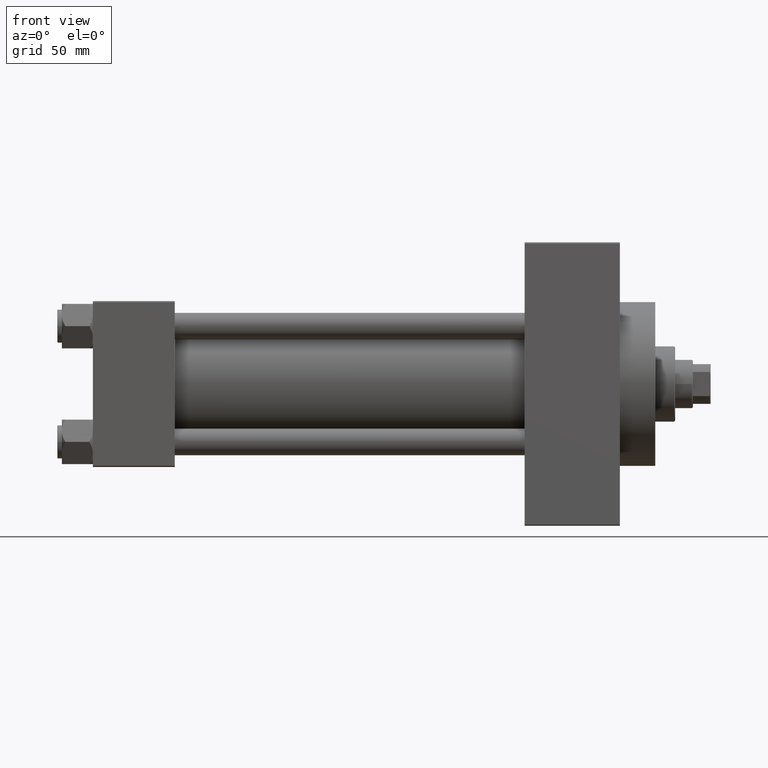
[diagram: clean part render]
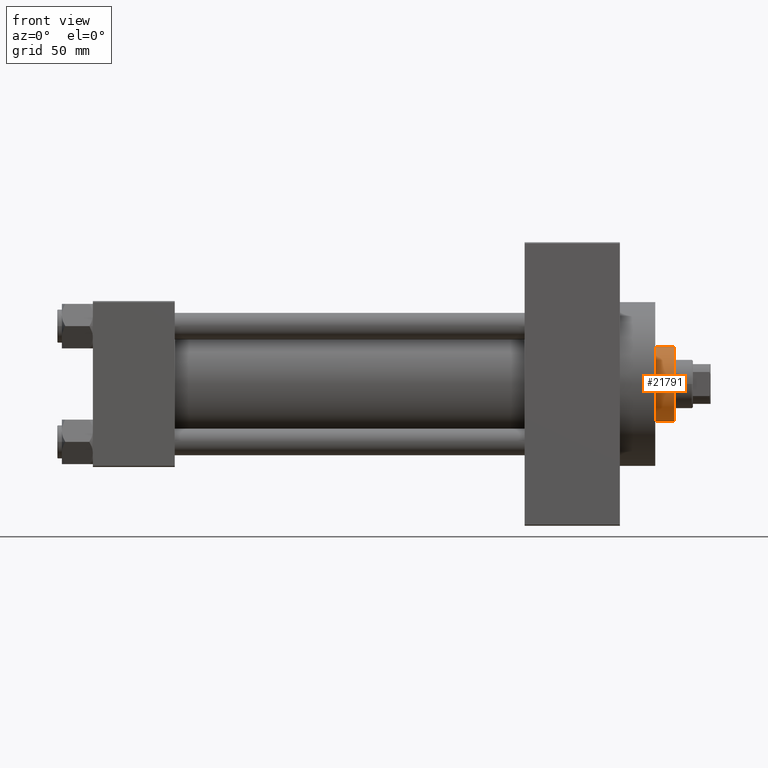
[diagram: same view with one face highlighted and labeled with its STEP entity id]
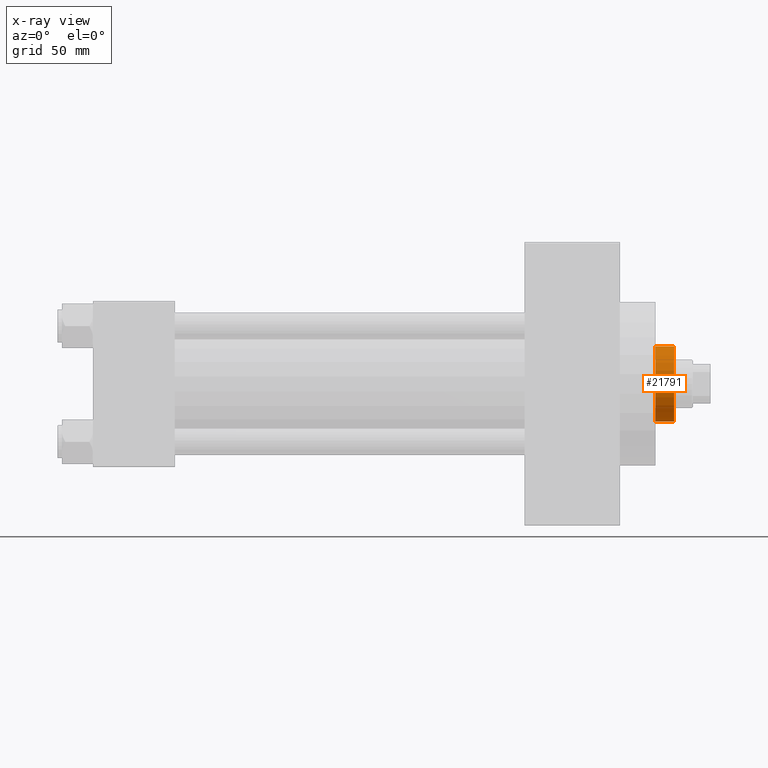
[diagram: x-ray of the same camera — body ghosted, the highlighted face saturated]
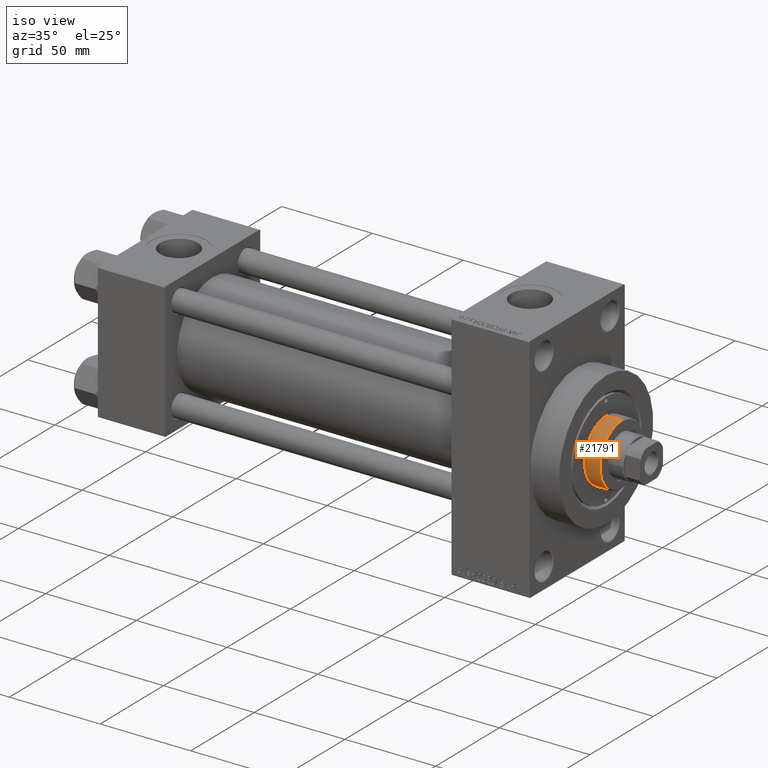
[diagram: same view with one face highlighted and labeled with its STEP entity id]
A machine part, front view. The second image highlights one B-rep face of the part: STEP entity #21791.
The next image is the same camera in x-ray: the body ghosted, the highlighted face saturated — about 0% of this face is hidden behind the body in this view.
A second angle (iso view) of the same face is appended — the face is thin or edge-on in the first view.
In plain terms, the highlighted cylindrical surface (partial cylindrical patch) has radius 17 mm, axis along (-1, 0, 0).
Its self-contained STEP definition (entity closure, byte-faithful):
#2236 = DIRECTION ( 'NONE',  ( -0.000000000000000000, -0.000000000000000000, -1.000000000000000000 ) ) ;
#5856 = AXIS2_PLACEMENT_3D ( 'NONE', #15769, #15316, #18895 ) ;
#7273 = CARTESIAN_POINT ( 'NONE',  ( -17.00000000000000000, 0.000000000000000000, 43.25999999999999801 ) ) ;
#8896 = ORIENTED_EDGE ( 'NONE', *, *, #33064, .F. ) ;
#11438 = VECTOR ( 'NONE', #23516, 1000.000000000000000 ) ;
#12049 = CIRCLE ( 'NONE', #44956, 17.00000000000000000 ) ;
#13742 = CARTESIAN_POINT ( 'NONE',  ( 0.000000000000000000, 0.000000000000000000, 51.76000000000000512 ) ) ;
#14427 = ORIENTED_EDGE ( 'NONE', *, *, #24363, .T. ) ;
#15316 = DIRECTION ( 'NONE',  ( -0.000000000000000000, -0.000000000000000000, -1.000000000000000000 ) ) ;
#15429 = VECTOR ( 'NONE', #2236, 1000.000000000000000 ) ;
#15769 = CARTESIAN_POINT ( 'NONE',  ( 0.000000000000000000, 0.000000000000000000, 52.25999999999999801 ) ) ;
#16616 = DIRECTION ( 'NONE',  ( 1.000000000000000000, 0.000000000000000000, 0.000000000000000000 ) ) ;
#18895 = DIRECTION ( 'NONE',  ( -1.000000000000000000, 0.000000000000000000, 0.000000000000000000 ) ) ;
#21354 = EDGE_CURVE ( 'NONE', #36731, #26629, #44888, .T. ) ;
#21443 = DIRECTION ( 'NONE',  ( 0.000000000000000000, 0.000000000000000000, 1.000000000000000000 ) ) ;
#21791 = ADVANCED_FACE ( 'NONE', ( #23981 ), #27111, .T. ) ;
#23276 = LINE ( 'NONE', #34323, #11438 ) ;
#23387 = VERTEX_POINT ( 'NONE', #36072 ) ;
#23516 = DIRECTION ( 'NONE',  ( -0.000000000000000000, -0.000000000000000000, -1.000000000000000000 ) ) ;
#23559 = LINE ( 'NONE', #45625, #15429 ) ;
#23981 = FACE_OUTER_BOUND ( 'NONE', #47252, .T. ) ;
#24363 = EDGE_CURVE ( 'NONE', #23387, #33009, #12049, .T. ) ;
#25738 = DIRECTION ( 'NONE',  ( 1.000000000000000000, 0.000000000000000000, 0.000000000000000000 ) ) ;
#26629 = VERTEX_POINT ( 'NONE', #45069 ) ;
#27111 = CYLINDRICAL_SURFACE ( 'NONE', #5856, 17.00000000000000000 ) ;
#29123 = CARTESIAN_POINT ( 'NONE',  ( 0.000000000000000000, 0.000000000000000000, 43.25999999999999801 ) ) ;
#33009 = VERTEX_POINT ( 'NONE', #7273 ) ;
#33064 = EDGE_CURVE ( 'NONE', #36731, #33009, #23276, .T. ) ;
#34323 = CARTESIAN_POINT ( 'NONE',  ( -17.00000000000000000, 0.000000000000000000, 52.25999999999999801 ) ) ;
#36072 = CARTESIAN_POINT ( 'NONE',  ( 17.00000000000000000, 2.081899558550500280E-15, 43.25999999999999801 ) ) ;
#36731 = VERTEX_POINT ( 'NONE', #38338 ) ;
#37328 = ORIENTED_EDGE ( 'NONE', *, *, #37968, .T. ) ;
#37968 = EDGE_CURVE ( 'NONE', #26629, #23387, #23559, .T. ) ;
#38338 = CARTESIAN_POINT ( 'NONE',  ( -17.00000000000000000, 0.000000000000000000, 51.76000000000000512 ) ) ;
#38907 = DIRECTION ( 'NONE',  ( 0.000000000000000000, 0.000000000000000000, -1.000000000000000000 ) ) ;
#41054 = AXIS2_PLACEMENT_3D ( 'NONE', #13742, #38907, #16616 ) ;
#44888 = CIRCLE ( 'NONE', #41054, 17.00000000000000000 ) ;
#44956 = AXIS2_PLACEMENT_3D ( 'NONE', #29123, #21443, #25738 ) ;
#45069 = CARTESIAN_POINT ( 'NONE',  ( 17.00000000000000000, 2.081899558550500280E-15, 51.76000000000000512 ) ) ;
#45625 = CARTESIAN_POINT ( 'NONE',  ( 17.00000000000000000, 2.081899558550500280E-15, 52.25999999999999801 ) ) ;
#47168 = ORIENTED_EDGE ( 'NONE', *, *, #21354, .T. ) ;
#47252 = EDGE_LOOP ( 'NONE', ( #47168, #37328, #14427, #8896 ) ) ;